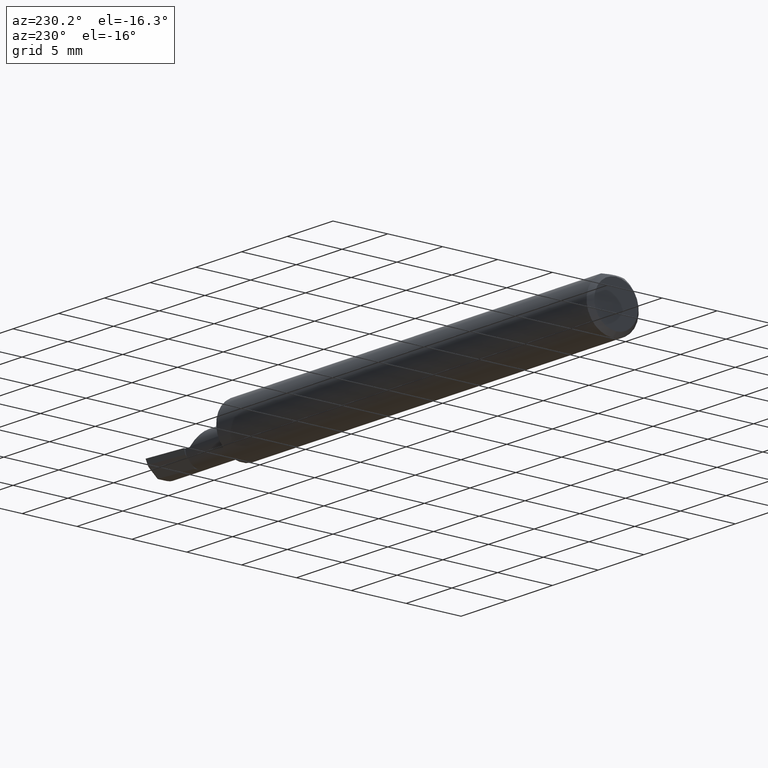
[diagram: clean part render]
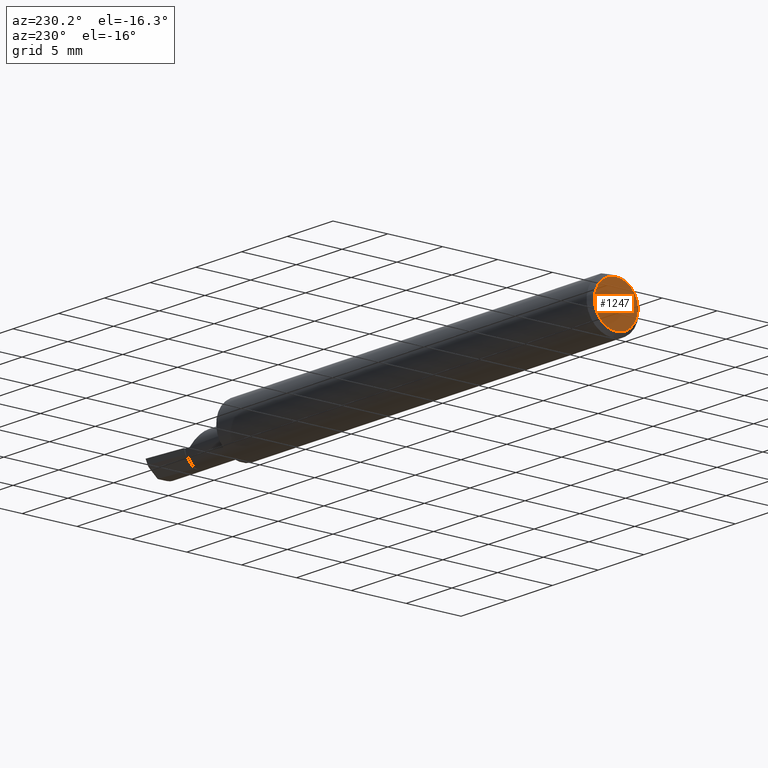
[diagram: same view with one face highlighted and labeled with its STEP entity id]
A machine part, auxiliary view. The second image highlights one B-rep face of the part: STEP entity #1247.
In plain terms, the highlighted planar face has unit normal (1, 0, 0).
Its self-contained STEP definition (entity closure, byte-faithful):
#65 = AXIS2_PLACEMENT_3D ( 'NONE', #1433, #880, #1409 ) ;
#123 = ORIENTED_EDGE ( 'NONE', *, *, #1386, .T. ) ;
#195 = AXIS2_PLACEMENT_3D ( 'NONE', #323, #774, #765 ) ;
#196 = AXIS2_PLACEMENT_3D ( 'NONE', #1092, #757, #1408 ) ;
#323 = CARTESIAN_POINT ( 'NONE',  ( 0.000000000000000000, 0.000000000000000000, 0.000000000000000000 ) ) ;
#456 = CARTESIAN_POINT ( 'NONE',  ( 0.000000000000000000, 1.054420894065869948E-17, 0.07859999999999980891 ) ) ;
#508 = VERTEX_POINT ( 'NONE', #456 ) ;
#534 = PLANE ( 'NONE',  #195 ) ;
#686 = ORIENTED_EDGE ( 'NONE', *, *, #735, .T. ) ;
#735 = EDGE_CURVE ( 'NONE', #1159, #508, #1073, .T. ) ;
#757 = DIRECTION ( 'NONE',  ( -1.000000000000000000, -0.000000000000000000, -0.000000000000000000 ) ) ;
#765 = DIRECTION ( 'NONE',  ( 0.000000000000000000, 0.000000000000000000, -1.000000000000000000 ) ) ;
#774 = DIRECTION ( 'NONE',  ( 1.000000000000000000, 0.000000000000000000, 0.000000000000000000 ) ) ;
#880 = DIRECTION ( 'NONE',  ( -1.000000000000000000, -0.000000000000000000, -0.000000000000000000 ) ) ;
#1073 = CIRCLE ( 'NONE', #65, 0.07859999999999980891 ) ;
#1092 = CARTESIAN_POINT ( 'NONE',  ( 0.000000000000000000, 0.000000000000000000, 0.000000000000000000 ) ) ;
#1104 = EDGE_LOOP ( 'NONE', ( #686, #123 ) ) ;
#1159 = VERTEX_POINT ( 'NONE', #1185 ) ;
#1185 = CARTESIAN_POINT ( 'NONE',  ( 0.000000000000000000, 0.000000000000000000, -0.07859999999999980891 ) ) ;
#1247 = ADVANCED_FACE ( 'NONE', ( #1416 ), #534, .F. ) ;
#1386 = EDGE_CURVE ( 'NONE', #508, #1159, #1400, .T. ) ;
#1400 = CIRCLE ( 'NONE', #196, 0.07859999999999980891 ) ;
#1408 = DIRECTION ( 'NONE',  ( 0.000000000000000000, 0.000000000000000000, -1.000000000000000000 ) ) ;
#1409 = DIRECTION ( 'NONE',  ( 0.000000000000000000, 0.000000000000000000, -1.000000000000000000 ) ) ;
#1416 = FACE_OUTER_BOUND ( 'NONE', #1104, .T. ) ;
#1433 = CARTESIAN_POINT ( 'NONE',  ( 0.000000000000000000, 0.000000000000000000, 0.000000000000000000 ) ) ;